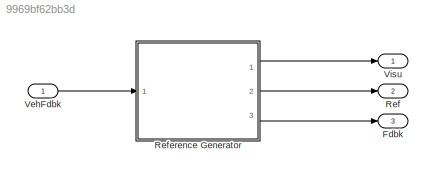
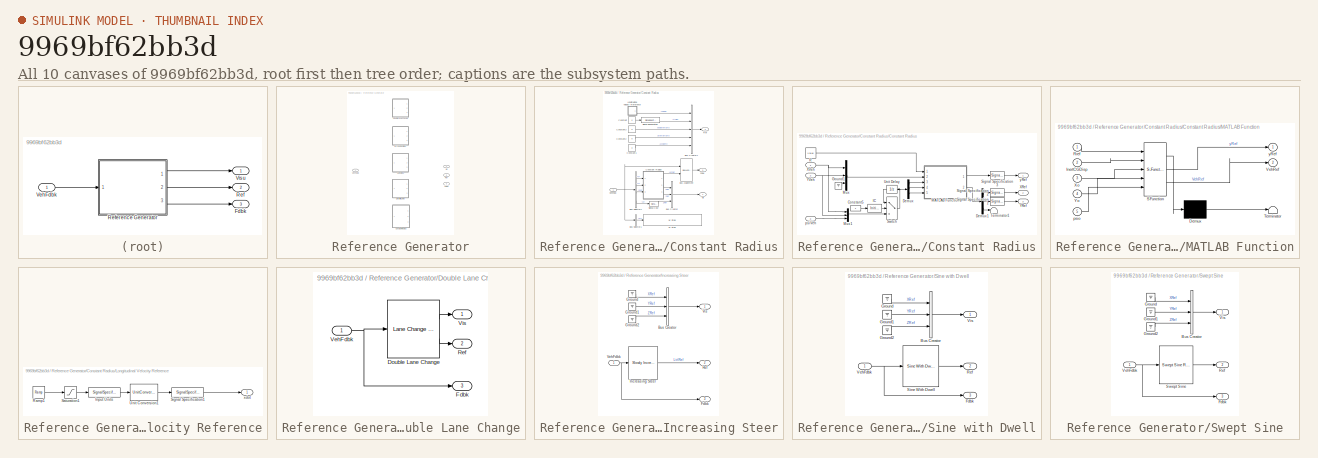
[diagram: thumbnail index - all 10 canvases of the model, root first then tree order]
MODEL slx_9969bf62bb3d
KIND model
CONFIG AbsTol = auto
CONFIG EnableMultiTasking = off
CONFIG FixedStep = auto
CONFIG MaxStep = auto
CONFIG MinStep = auto
CONFIG RelTol = 1e-3
CONFIG SampleTimeConstraint = Unconstrained
CONFIG Solver = VariableStepAuto
CONFIG SolverName = VariableStepAuto
CONFIG StartTime = 0.0
CONFIG StopTime = 10.0
BLOCK [Outport] Fdbk
  Port = 3
BLOCK [Outport] Ref
  Port = 2
BLOCK [SubSystem] Reference Generator
  LabelModeActiveChoice = 4
  Ports = [1, 3]
  RequestExecContextInheritance = off
  Variant = on
  VariantControl = Variant1
  VariantControlMode = Label
BLOCK [Outport] Reference Generator/ Fdbk
  Port = 3
  VectorParamsAs1DForOutWhenUnconnected = off
BLOCK [Outport] Reference Generator/ Ref
  Port = 2
  VectorParamsAs1DForOutWhenUnconnected = off
BLOCK [Outport] Reference Generator/ Vis
  VectorParamsAs1DForOutWhenUnconnected = off
BLOCK [SubSystem] Reference Generator/Constant Radius
  AncestorBlock = vehdynlibscenariocommon/Constant Radius
  Ports = [1, 3]
  RequestExecContextInheritance = off
  VariantControl = 4
BLOCK [Outport] Reference Generator/Constant Radius/ Fdbk
  Port = 3
  VectorParamsAs1DForOutWhenUnconnected = off
BLOCK [Outport] Reference Generator/Constant Radius/ Ref
  Port = 2
  VectorParamsAs1DForOutWhenUnconnected = off
BLOCK [Outport] Reference Generator/Constant Radius/ Vis
  VectorParamsAs1DForOutWhenUnconnected = off
BLOCK [BusAssignment] Reference Generator/Constant Radius/Bus Assignment
  AssignedSignals = Body.Y
  Ports = [2, 1]
BLOCK [BusCreator] Reference Generator/Constant Radius/Bus Creator
  DisplayOption = bar
  InheritFromInputs = on
  Inputs = 3
  Ports = [3, 1]
BLOCK [BusCreator] Reference Generator/Constant Radius/Bus Creator1
  DisplayOption = bar
  InheritFromInputs = on
  Inputs = 5
  Ports = [5, 1]
BLOCK [BusSelector] Reference Generator/Constant Radius/Bus Selector1
  OutputSignals = ay
  Ports = [1, 1]
BLOCK [BusSelector] Reference Generator/Constant Radius/Bus Selector2
  OutputSignals = X,Y,psi,Z
  Ports = [1, 4]
BLOCK [Constant] Reference Generator/Constant Radius/Constant
  Value = 0
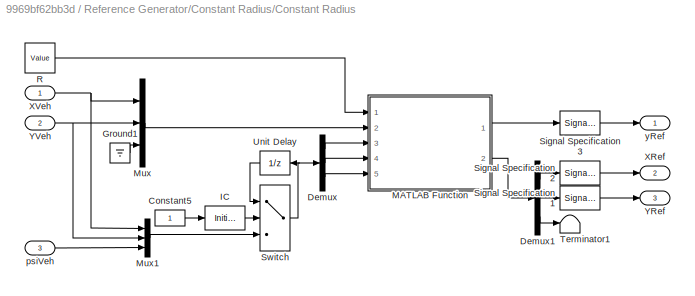
BLOCK [SubSystem] Reference Generator/Constant Radius/Constant Radius
  Ports = [3, 3]
  RequestExecContextInheritance = off
BLOCK [Constant] Reference Generator/Constant Radius/Constant Radius/Constant5
BLOCK [Demux] Reference Generator/Constant Radius/Constant Radius/Demux
  Outputs = 3
  Ports = [1, 3]
BLOCK [Demux] Reference Generator/Constant Radius/Constant Radius/Demux1
  Outputs = 3
  Ports = [1, 3]
BLOCK [Ground] Reference Generator/Constant Radius/Constant Radius/Ground1
BLOCK [InitialCondition] Reference Generator/Constant Radius/Constant Radius/IC
  Value = 0
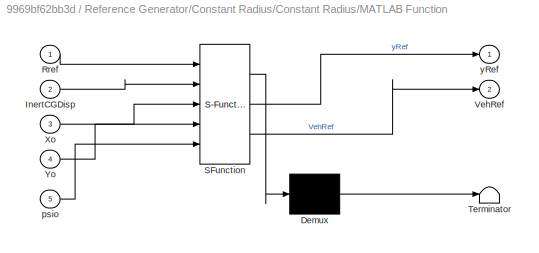
BLOCK [SubSystem] Reference Generator/Constant Radius/Constant Radius/MATLAB Function
  ErrorFcn = Stateflow.Translate.translate
  PermitHierarchicalResolution = ExplicitOnly
  Ports = [5, 2]
  RequestExecContextInheritance = off
  SFBlockType = MATLAB Function
  TreatAsAtomicUnit = on
BLOCK [Demux] Reference Generator/Constant Radius/Constant Radius/MATLAB Function/ Demux 
  Outputs = 1
  Ports = [1, 1]
BLOCK [S-Function] Reference Generator/Constant Radius/Constant Radius/MATLAB Function/ SFunction 
  EnableBusSupport = on
  FunctionName = sf_sfun
  Parameters = turnDirMask
  PortCounts = [5 3]
  Ports = [5, 3]
  SFcnIsStateOwnerBlock = off
  SFunctionDeploymentMode = off
  Tag = Stateflow S-Function 4
BLOCK [Terminator] Reference Generator/Constant Radius/Constant Radius/MATLAB Function/ Terminator 
BLOCK [Inport] Reference Generator/Constant Radius/Constant Radius/MATLAB Function/InertCGDisp
  Port = 2
BLOCK [Inport] Reference Generator/Constant Radius/Constant Radius/MATLAB Function/Rref
BLOCK [Outport] Reference Generator/Constant Radius/Constant Radius/MATLAB Function/VehRef
  Port = 2
  VectorParamsAs1DForOutWhenUnconnected = off
BLOCK [Inport] Reference Generator/Constant Radius/Constant Radius/MATLAB Function/Xo
  Port = 3
BLOCK [Inport] Reference Generator/Constant Radius/Constant Radius/MATLAB Function/Yo
  Port = 4
BLOCK [Inport] Reference Generator/Constant Radius/Constant Radius/MATLAB Function/psio
  Port = 5
BLOCK [Outport] Reference Generator/Constant Radius/Constant Radius/MATLAB Function/yRef
  VectorParamsAs1DForOutWhenUnconnected = off
BLOCK [Mux] Reference Generator/Constant Radius/Constant Radius/Mux
  DisplayOption = bar
  Inputs = 3
  Ports = [3, 1]
BLOCK [Mux] Reference Generator/Constant Radius/Constant Radius/Mux1
  DisplayOption = bar
  Inputs = 3
  Ports = [3, 1]
BLOCK [Constant] Reference Generator/Constant Radius/Constant Radius/R
  NameLocation = top
  Value = Value
BLOCK [SignalSpecification] Reference Generator/Constant Radius/Constant Radius/Signal Specification1
  Unit = m
BLOCK [SignalSpecification] Reference Generator/Constant Radius/Constant Radius/Signal Specification2
  Unit = m
BLOCK [SignalSpecification] Reference Generator/Constant Radius/Constant Radius/Signal Specification3
  Unit = m
BLOCK [Switch] Reference Generator/Constant Radius/Constant Radius/Switch
  Criteria = u2 > Threshold
  InputSameDT = off
  SaturateOnIntegerOverflow = off
BLOCK [Terminator] Reference Generator/Constant Radius/Constant Radius/Terminator1
BLOCK [UnitDelay] Reference Generator/Constant Radius/Constant Radius/Unit Delay
  HasFrameUpgradeWarning = on
  SampleTime = -1
BLOCK [Outport] Reference Generator/Constant Radius/Constant Radius/XRef
  Port = 2
  VectorParamsAs1DForOutWhenUnconnected = off
BLOCK [Inport] Reference Generator/Constant Radius/Constant Radius/XVeh
BLOCK [Outport] Reference Generator/Constant Radius/Constant Radius/YRef
  Port = 3
  VectorParamsAs1DForOutWhenUnconnected = off
BLOCK [Inport] Reference Generator/Constant Radius/Constant Radius/YVeh
  Port = 2
BLOCK [Inport] Reference Generator/Constant Radius/Constant Radius/psiVeh
  Port = 3
BLOCK [Outport] Reference Generator/Constant Radius/Constant Radius/yRef
  VectorParamsAs1DForOutWhenUnconnected = off
BLOCK [Constant] Reference Generator/Constant Radius/Constant1
  OutDataTypeStr = boolean
  Value = 0
BLOCK [Constant] Reference Generator/Constant Radius/Constant2
  Value = 0
BLOCK [Constant] Reference Generator/Constant Radius/Constant3
  OutDataTypeStr = boolean
  Value = 0
BLOCK [SubSystem] Reference Generator/Constant Radius/Longitudinal Velocity Reference
  NameLocation = top
  Ports = [0, 1]
  RequestExecContextInheritance = off
BLOCK [SignalSpecification] Reference Generator/Constant Radius/Longitudinal Velocity Reference/Input Units
  Unit = mph
BLOCK [Reference] Reference Generator/Constant Radius/Longitudinal Velocity Reference/Ramp1  REF=simulink/Sources/Ramp
  Ports = [0, 1]
  SourceBlock = simulink/Sources/Ramp
  SourceProductBaseCode = SL
  SourceType = Ramp
BLOCK [Saturate] Reference Generator/Constant Radius/Longitudinal Velocity Reference/Saturation1
  LowerLimit = 0
  UpperLimit = xdot_r
  ZeroCross = off
BLOCK [SignalSpecification] Reference Generator/Constant Radius/Longitudinal Velocity Reference/Signal Specification1
  Unit = m/s
BLOCK [UnitConversion] Reference Generator/Constant Radius/Longitudinal Velocity Reference/Unit Conversion1
BLOCK [Outport] Reference Generator/Constant Radius/Longitudinal Velocity Reference/xdot
  VectorParamsAs1DForOutWhenUnconnected = off
BLOCK [SignalConversion] Reference Generator/Constant Radius/Signal Copy
  OverrideOpt = off
BLOCK [SignalSpecification] Reference Generator/Constant Radius/Signal Specification
  Unit = m
BLOCK [Inport] Reference Generator/Constant Radius/VehFdbk 
  OutDataTypeStr = Bus: VehFdbk
BLOCK [Reference] Reference Generator/Constant Radius/ay Stop  REF=vehdynlibscenariocommon/Slowly Increasing Steer/ay Stop
  Ports = [1]
  SourceBlock = vehdynlibscenariocommon/Slowly Increasing Steer/ay Stop
  SourceProductBaseCode = VE
  SourceType = SubSystem
BLOCK [SubSystem] Reference Generator/Double Lane Change
  Ports = [1, 3]
  RequestExecContextInheritance = off
  VariantControl = 0
BLOCK [Outport] Reference Generator/Double Lane Change/ Fdbk
  Port = 3
  VectorParamsAs1DForOutWhenUnconnected = off
BLOCK [Outport] Reference Generator/Double Lane Change/ Ref
  Port = 2
  VectorParamsAs1DForOutWhenUnconnected = off
BLOCK [Outport] Reference Generator/Double Lane Change/ Vis
  VectorParamsAs1DForOutWhenUnconnected = off
BLOCK [Reference] Reference Generator/Double Lane Change/Double Lane Change  REF=vehdynlibscenariocommon/Lane Change Reference
Generator
  Ports = [1, 2]
  SourceBlock = vehdynlibscenariocommon/Lane Change Reference\nGenerator
  SourceProductBaseCode = VE
  SourceType = Double Lane Change Source
BLOCK [Inport] Reference Generator/Double Lane Change/VehFdbk 
BLOCK [SubSystem] Reference Generator/Increasing Steer
  Ports = [1, 3]
  RequestExecContextInheritance = off
  VariantControl = 1
BLOCK [Outport] Reference Generator/Increasing Steer/ Fdbk
  Port = 3
  VectorParamsAs1DForOutWhenUnconnected = off
BLOCK [Outport] Reference Generator/Increasing Steer/ Ref
  Port = 2
  VectorParamsAs1DForOutWhenUnconnected = off
BLOCK [Outport] Reference Generator/Increasing Steer/ Vis
  VectorParamsAs1DForOutWhenUnconnected = off
BLOCK [BusCreator] Reference Generator/Increasing Steer/Bus Creator
  DisplayOption = bar
  InheritFromInputs = on
  Inputs = 3
  Ports = [3, 1]
BLOCK [Ground] Reference Generator/Increasing Steer/Ground
BLOCK [Ground] Reference Generator/Increasing Steer/Ground1
BLOCK [Ground] Reference Generator/Increasing Steer/Ground2
BLOCK [Reference] Reference Generator/Increasing Steer/Increasing Steer  REF=vehdynlibscenariocommon/Slowly Increasing Steer
  Ports = [1, 1]
  SourceBlock = vehdynlibscenariocommon/Slowly Increasing Steer
  SourceProductBaseCode = VE
  SourceType = Slowly Increasing Steer Maneuver
BLOCK [Inport] Reference Generator/Increasing Steer/VehFdbk 
BLOCK [SubSystem] Reference Generator/Sine with Dwell
  Ports = [1, 3]
  RequestExecContextInheritance = off
  VariantControl = 3
BLOCK [Outport] Reference Generator/Sine with Dwell/ Fdbk
  Port = 3
  VectorParamsAs1DForOutWhenUnconnected = off
BLOCK [Outport] Reference Generator/Sine with Dwell/ Ref
  Port = 2
  VectorParamsAs1DForOutWhenUnconnected = off
BLOCK [Outport] Reference Generator/Sine with Dwell/ Vis
  VectorParamsAs1DForOutWhenUnconnected = off
BLOCK [BusCreator] Reference Generator/Sine with Dwell/Bus Creator
  DisplayOption = bar
  InheritFromInputs = on
  Inputs = 3
  Ports = [3, 1]
BLOCK [Ground] Reference Generator/Sine with Dwell/Ground
BLOCK [Ground] Reference Generator/Sine with Dwell/Ground1
BLOCK [Ground] Reference Generator/Sine with Dwell/Ground2
BLOCK [Reference] Reference Generator/Sine with Dwell/Sine With Dwell  REF=vehdynlibscenariocommon/Sine With Dwell
  Ports = [1, 1]
  SourceBlock = vehdynlibscenariocommon/Sine With Dwell
  SourceProductBaseCode = VE
  SourceType = Sine With Dwell
BLOCK [Inport] Reference Generator/Sine with Dwell/VehFdbk 
BLOCK [SubSystem] Reference Generator/Swept Sine
  Ports = [1, 3]
  RequestExecContextInheritance = off
  VariantControl = 2
BLOCK [Outport] Reference Generator/Swept Sine/ Fdbk
  Port = 3
  VectorParamsAs1DForOutWhenUnconnected = off
BLOCK [Outport] Reference Generator/Swept Sine/ Ref
  Port = 2
  VectorParamsAs1DForOutWhenUnconnected = off
BLOCK [Outport] Reference Generator/Swept Sine/ Vis
  VectorParamsAs1DForOutWhenUnconnected = off
BLOCK [BusCreator] Reference Generator/Swept Sine/Bus Creator
  DisplayOption = bar
  InheritFromInputs = on
  Inputs = 3
  Ports = [3, 1]
BLOCK [Ground] Reference Generator/Swept Sine/Ground
BLOCK [Ground] Reference Generator/Swept Sine/Ground1
BLOCK [Ground] Reference Generator/Swept Sine/Ground2
BLOCK [Reference] Reference Generator/Swept Sine/Swept Sine  REF=vehdynlibscenariocommon/Swept Sine Reference
Generator
  Ports = [1, 1]
  SourceBlock = vehdynlibscenariocommon/Swept Sine Reference\nGenerator
  SourceProductBaseCode = VE
  SourceType = Swept Sine Steer
BLOCK [Inport] Reference Generator/Swept Sine/VehFdbk 
BLOCK [Inport] Reference Generator/VehFdbk 
  OutDataTypeStr = Bus: VehFdbk
BLOCK [Inport] VehFdbk
  OutDataTypeStr = Bus: VehFdbk
BLOCK [Outport] Visu
LINE Reference Generator/Double Lane Change/Double Lane Change:1 -> Reference Generator/Double Lane Change/ Vis:1
LINE Reference Generator/Double Lane Change/Double Lane Change:2 -> Reference Generator/Double Lane Change/ Ref:1
NET Reference Generator/Double Lane Change/VehFdbk :1 -> Reference Generator/Double Lane Change/ Fdbk:1, Reference Generator/Double Lane Change/Double Lane Change:1
LINE Reference Generator/Increasing Steer/Bus Creator:1 -> Reference Generator/Increasing Steer/ Vis:1
LINE Reference Generator/Increasing Steer/Ground1:1 -> Reference Generator/Increasing Steer/Bus Creator:2
LINE Reference Generator/Increasing Steer/Ground2:1 -> Reference Generator/Increasing Steer/Bus Creator:3
LINE Reference Generator/Increasing Steer/Ground:1 -> Reference Generator/Increasing Steer/Bus Creator:1
LINE Reference Generator/Increasing Steer/Increasing Steer:1 -> Reference Generator/Increasing Steer/ Ref:1
NET Reference Generator/Increasing Steer/VehFdbk :1 -> Reference Generator/Increasing Steer/ Fdbk:1, Reference Generator/Increasing Steer/Increasing Steer:1
LINE Reference Generator/Sine with Dwell/Bus Creator:1 -> Reference Generator/Sine with Dwell/ Vis:1
LINE Reference Generator/Sine with Dwell/Ground1:1 -> Reference Generator/Sine with Dwell/Bus Creator:2
LINE Reference Generator/Sine with Dwell/Ground2:1 -> Reference Generator/Sine with Dwell/Bus Creator:3
LINE Reference Generator/Sine with Dwell/Ground:1 -> Reference Generator/Sine with Dwell/Bus Creator:1
LINE Reference Generator/Sine with Dwell/Sine With Dwell:1 -> Reference Generator/Sine with Dwell/ Ref:1
NET Reference Generator/Sine with Dwell/VehFdbk :1 -> Reference Generator/Sine with Dwell/ Fdbk:1, Reference Generator/Sine with Dwell/Sine With Dwell:1
LINE Reference Generator/Swept Sine/Bus Creator:1 -> Reference Generator/Swept Sine/ Vis:1
LINE Reference Generator/Swept Sine/Ground1:1 -> Reference Generator/Swept Sine/Bus Creator:2
LINE Reference Generator/Swept Sine/Ground2:1 -> Reference Generator/Swept Sine/Bus Creator:3
LINE Reference Generator/Swept Sine/Ground:1 -> Reference Generator/Swept Sine/Bus Creator:1
LINE Reference Generator/Swept Sine/Swept Sine:1 -> Reference Generator/Swept Sine/ Ref:1
NET Reference Generator/Swept Sine/VehFdbk :1 -> Reference Generator/Swept Sine/ Fdbk:1, Reference Generator/Swept Sine/Swept Sine:1
LINE Reference Generator:1 -> Visu:1
LINE Reference Generator:2 -> Ref:1
LINE Reference Generator:3 -> Fdbk:1
LINE VehFdbk:1 -> Reference Generator:1
note: NET lines group one-source signal fan-out (src -> all destinations, sorted); 1:1 wires keep LINE
CHART Reference Generator/Constant Radius/Constant Radius/MATLAB Function states=1 transitions=1
  STATE_LABEL 'eML_blk_kernel()'
  STATE_LABEL 'SCRIPT:\nfunction [yRef,VehRef] = fcn(Rref, InertCGDisp,Xo,Yo,psio,turnDirMask)\nif turnDirMask==1\n    turnDir = 1;\nelse\n    turnDir = -1;\nend\nXo=Xo+Rref*sin(psio).*turnDir;\nYo=Yo-Rref*cos(psio).*turnDir;\nRVeh = sqrt((InertCGDisp(1)-Xo).^2+(InertCGDisp(2)-Yo).^2);\ntheta = atan2(InertCGDisp(1)-Xo,InertCGDisp(2)-Yo)+atan2(0*2,RVeh).*turnDir;\nVehRefX = Rref*sin(theta)+Xo;\nVehRefY = Rref*cos(theta)+Yo;\n...<+118ch>'
CHART  states=0 transitions=0
